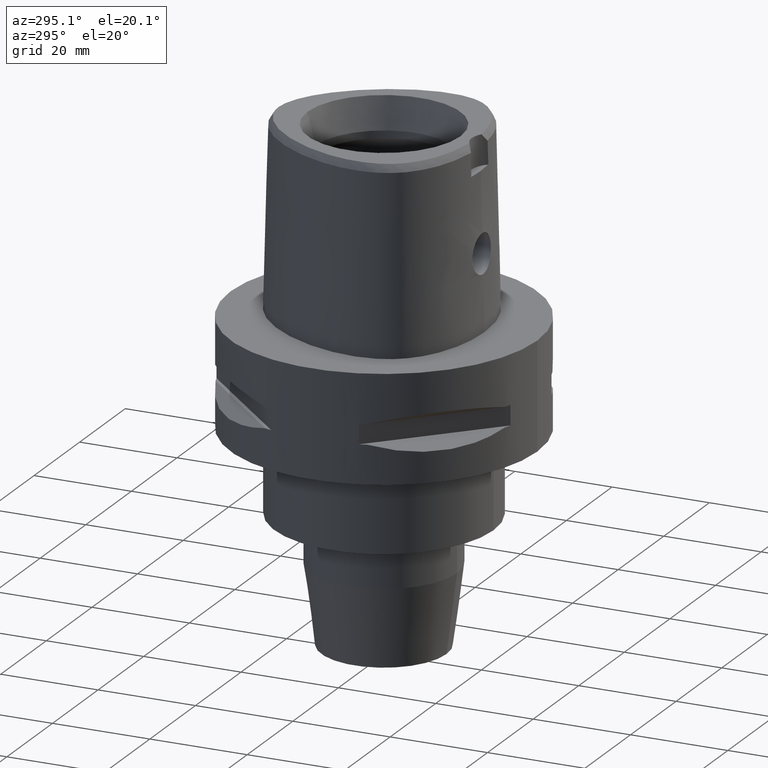
[diagram: clean part render]
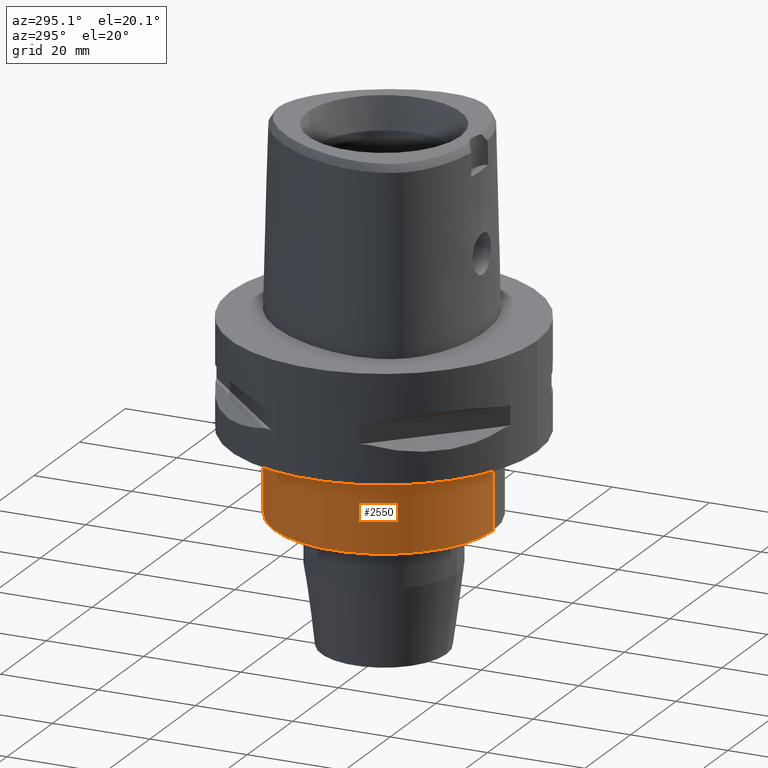
[diagram: same view with one face highlighted and labeled with its STEP entity id]
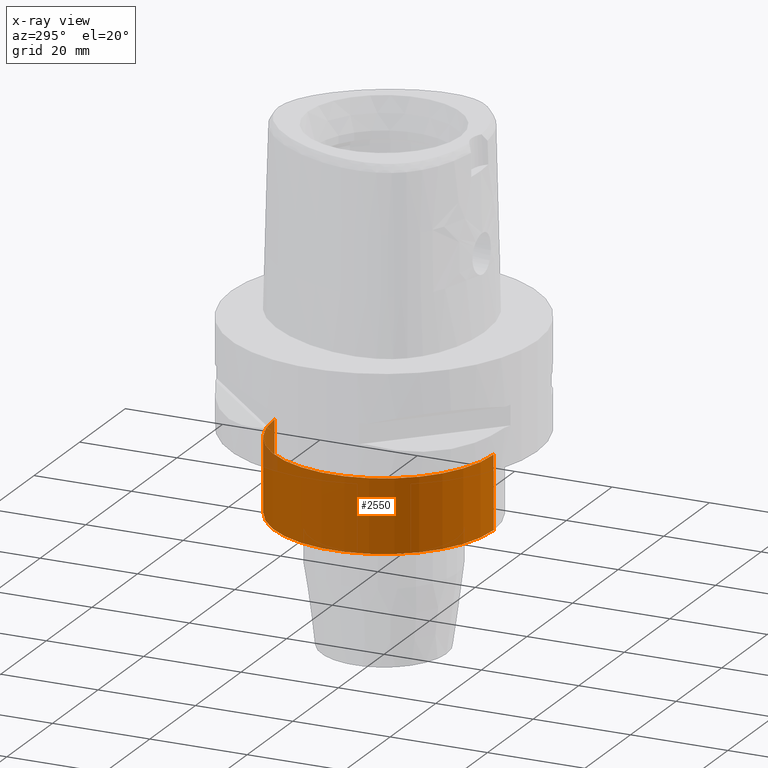
[diagram: x-ray of the same camera — body ghosted, the highlighted face saturated]
A machine part, auxiliary view. The second image highlights one B-rep face of the part: STEP entity #2550.
The next image is the same camera in x-ray: the body ghosted, the highlighted face saturated — about 3% of this face is hidden behind the body in this view.
In plain terms, the highlighted cylindrical surface (partial cylindrical patch) has radius 22.5 mm, axis along (0, 0, -1).
Its self-contained STEP definition (entity closure, byte-faithful):
#560=CARTESIAN_POINT('',(0.E0,0.E0,-2.4E1));
#561=DIRECTION('',(0.E0,0.E0,-1.E0));
#562=DIRECTION('',(0.E0,-1.E0,0.E0));
#563=AXIS2_PLACEMENT_3D('',#560,#561,#562);
#583=DIRECTION('',(0.E0,0.E0,-1.E0));
#584=VECTOR('',#583,1.498998684350E1);
#585=CARTESIAN_POINT('',(0.E0,2.25E1,-2.4E1));
#586=LINE('',#585,#584);
#590=DIRECTION('',(0.E0,0.E0,-1.E0));
#591=VECTOR('',#590,1.498998684350E1);
#592=CARTESIAN_POINT('',(0.E0,-2.25E1,-2.4E1));
#593=LINE('',#592,#591);
#597=CARTESIAN_POINT('',(0.E0,0.E0,-3.898998684350E1));
#598=DIRECTION('',(0.E0,0.E0,1.E0));
#599=DIRECTION('',(0.E0,1.E0,0.E0));
#600=AXIS2_PLACEMENT_3D('',#597,#598,#599);
#1608=CARTESIAN_POINT('',(0.E0,2.25E1,-2.4E1));
#1609=VERTEX_POINT('',#1608);
#1610=CARTESIAN_POINT('',(0.E0,-2.25E1,-2.4E1));
#1611=VERTEX_POINT('',#1610);
#1612=CARTESIAN_POINT('',(0.E0,2.25E1,-3.898998684350E1));
#1613=VERTEX_POINT('',#1612);
#1614=CARTESIAN_POINT('',(0.E0,-2.25E1,-3.898998684350E1));
#1615=VERTEX_POINT('',#1614);
#2538=CARTESIAN_POINT('',(0.E0,0.E0,3.25E0));
#2539=DIRECTION('',(0.E0,0.E0,-1.E0));
#2540=DIRECTION('',(0.E0,-1.E0,0.E0));
#2541=AXIS2_PLACEMENT_3D('',#2538,#2539,#2540);
#2542=CYLINDRICAL_SURFACE('',#2541,2.25E1);
#2543=ORIENTED_EDGE('',*,*,#2528,.F.);
#2544=ORIENTED_EDGE('',*,*,#2505,.F.);
#2545=ORIENTED_EDGE('',*,*,#2532,.T.);
#2547=ORIENTED_EDGE('',*,*,#2546,.F.);
#2548=EDGE_LOOP('',(#2543,#2544,#2545,#2547));
#2549=FACE_OUTER_BOUND('',#2548,.F.);
#564=CIRCLE('',#563,2.25E1);
#601=CIRCLE('',#600,2.25E1);
#2505=EDGE_CURVE('',#1611,#1609,#564,.T.);
#2528=EDGE_CURVE('',#1609,#1613,#586,.T.);
#2532=EDGE_CURVE('',#1611,#1615,#593,.T.);
#2546=EDGE_CURVE('',#1613,#1615,#601,.T.);
#2550=ADVANCED_FACE('',(#2549),#2542,.T.);